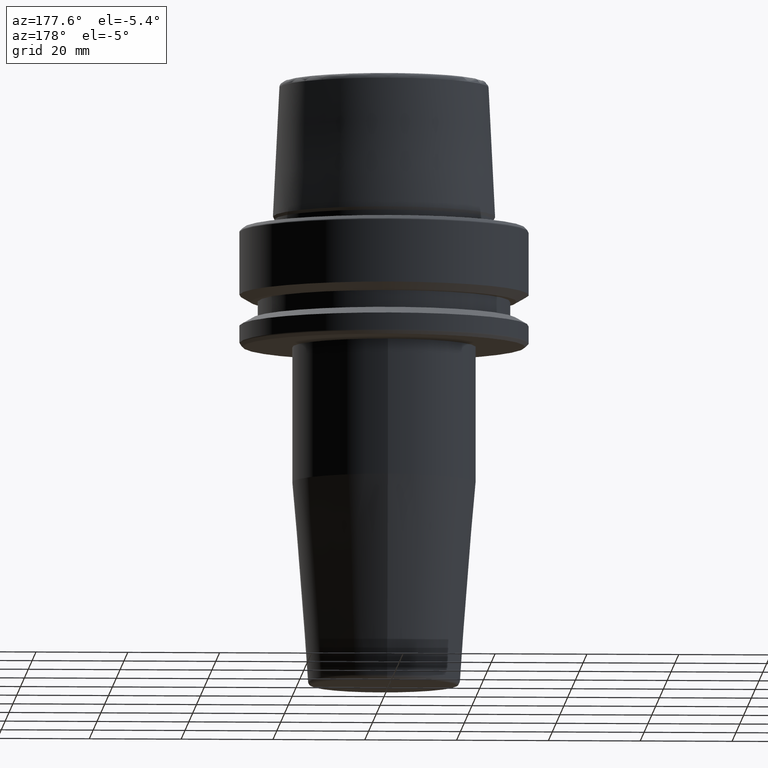
[diagram: clean part render]
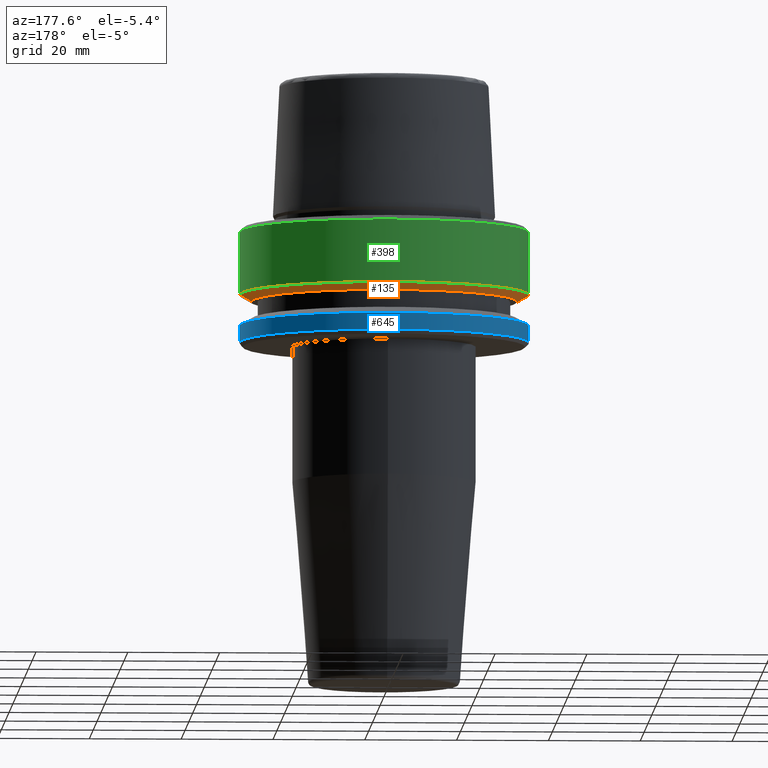
[diagram: same view with three faces highlighted in distinct colors, each labeled with its STEP entity id]
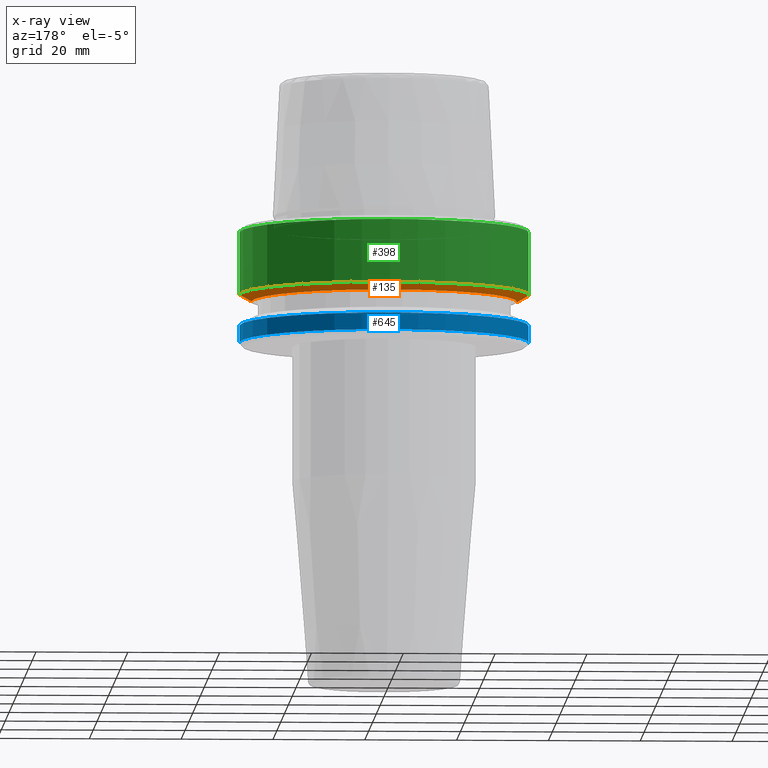
[diagram: x-ray of the same camera — body ghosted, the three highlighted faces saturated]
A machine part, auxiliary view with three faces highlighted in distinct colors.
The next image is the same camera in x-ray (body ghosted, the three faces saturated) — at least one of them is partly hidden behind the body in this view.
Their STEP definitions:

[orange] entity #135 — the highlighted conical surface has half-angle 60 deg.
#11 = CARTESIAN_POINT ( 'NONE',  ( 28.94089653438085100, 0.0000000000000000000, -16.10000000000001600 ) ) ;
#34 = EDGE_LOOP ( 'NONE', ( #689, #196, #109, #1229 ) ) ;
#43 = CARTESIAN_POINT ( 'NONE',  ( 28.94089653438085100, 0.0000000000000000000, -16.10000000000001600 ) ) ;
#109 = ORIENTED_EDGE ( 'NONE', *, *, #465, .F. ) ;
#135 = ADVANCED_FACE ( 'NONE', ( #1219 ), #867, .T. ) ;
#147 = CARTESIAN_POINT ( 'NONE',  ( -28.94089653438085100, 3.544237630528423800E-015, -16.10000000000001600 ) ) ;
#196 = ORIENTED_EDGE ( 'NONE', *, *, #1183, .T. ) ;
#218 = CIRCLE ( 'NONE', #932, 31.50000000000000000 ) ;
#225 = EDGE_CURVE ( 'NONE', #891, #380, #796, .T. ) ;
#286 = CARTESIAN_POINT ( 'NONE',  ( 0.0000000000000000000, 0.0000000000000000000, -16.10000000000001600 ) ) ;
#305 = LINE ( 'NONE', #147, #841 ) ;
#324 = CARTESIAN_POINT ( 'NONE',  ( 0.0000000000000000000, 0.0000000000000000000, -16.10000000000001600 ) ) ;
#380 = VERTEX_POINT ( 'NONE', #603 ) ;
#389 = DIRECTION ( 'NONE',  ( 1.000000000000000000, 0.0000000000000000000, 0.0000000000000000000 ) ) ;
#455 = CARTESIAN_POINT ( 'NONE',  ( 0.0000000000000000000, 0.0000000000000000000, -14.62250092524070100 ) ) ;
#465 = EDGE_CURVE ( 'NONE', #380, #585, #218, .T. ) ;
#525 = DIRECTION ( 'NONE',  ( -0.0000000000000000000, -0.0000000000000000000, 1.000000000000000000 ) ) ;
#561 = DIRECTION ( 'NONE',  ( 1.000000000000000000, 0.0000000000000000000, 0.0000000000000000000 ) ) ;
#585 = VERTEX_POINT ( 'NONE', #1071 ) ;
#603 = CARTESIAN_POINT ( 'NONE',  ( 31.50000000000000000, 0.0000000000000000000, -14.62250092524070100 ) ) ;
#632 = VECTOR ( 'NONE', #709, 1000.000000000000000 ) ;
#689 = ORIENTED_EDGE ( 'NONE', *, *, #912, .T. ) ;
#709 = DIRECTION ( 'NONE',  ( 0.8660254037844389300, 0.0000000000000000000, 0.4999999999999995000 ) ) ;
#796 = LINE ( 'NONE', #43, #632 ) ;
#823 = CARTESIAN_POINT ( 'NONE',  ( -28.94089653438085100, 3.700937523921292900E-015, -16.10000000000001600 ) ) ;
#837 = DIRECTION ( 'NONE',  ( -0.8660254037844389300, 1.060575238724907300E-016, 0.4999999999999995000 ) ) ;
#841 = VECTOR ( 'NONE', #837, 1000.000000000000000 ) ;
#867 = CONICAL_SURFACE ( 'NONE', #1030, 28.94089653438085100, 1.047197551196598300 ) ;
#891 = VERTEX_POINT ( 'NONE', #11 ) ;
#912 = EDGE_CURVE ( 'NONE', #891, #1087, #1016, .T. ) ;
#932 = AXIS2_PLACEMENT_3D ( 'NONE', #455, #1152, #561 ) ;
#982 = DIRECTION ( 'NONE',  ( -0.0000000000000000000, -0.0000000000000000000, 1.000000000000000000 ) ) ;
#1016 = CIRCLE ( 'NONE', #1226, 28.94089653438085100 ) ;
#1030 = AXIS2_PLACEMENT_3D ( 'NONE', #324, #525, #1216 ) ;
#1071 = CARTESIAN_POINT ( 'NONE',  ( -31.50000000000000000, 3.857637417314162700E-015, -14.62250092524070100 ) ) ;
#1087 = VERTEX_POINT ( 'NONE', #823 ) ;
#1152 = DIRECTION ( 'NONE',  ( -0.0000000000000000000, -0.0000000000000000000, 1.000000000000000000 ) ) ;
#1183 = EDGE_CURVE ( 'NONE', #1087, #585, #305, .T. ) ;
#1216 = DIRECTION ( 'NONE',  ( 1.000000000000000000, 0.0000000000000000000, 0.0000000000000000000 ) ) ;
#1219 = FACE_OUTER_BOUND ( 'NONE', #34, .T. ) ;
#1226 = AXIS2_PLACEMENT_3D ( 'NONE', #286, #982, #389 ) ;
#1229 = ORIENTED_EDGE ( 'NONE', *, *, #225, .F. ) ;

[blue] entity #645 — the highlighted cylindrical surface (partial cylindrical patch) has radius 31.5 mm, axis along (-0, -0, 1).
#6 = EDGE_CURVE ( 'NONE', #396, #102, #1021, .T. ) ;
#10 = CYLINDRICAL_SURFACE ( 'NONE', #688, 31.50000000000000000 ) ;
#29 = CARTESIAN_POINT ( 'NONE',  ( -31.50000000000000000, 3.857637417314162700E-015, 78.96908074195309300 ) ) ;
#46 = CARTESIAN_POINT ( 'NONE',  ( 31.50000000000000000, 0.0000000000000000000, -25.03431457505077200 ) ) ;
#77 = CARTESIAN_POINT ( 'NONE',  ( -31.50000000000000000, 3.857637417314162700E-015, -21.37749907475931700 ) ) ;
#102 = VERTEX_POINT ( 'NONE', #77 ) ;
#211 = CARTESIAN_POINT ( 'NONE',  ( 0.0000000000000000000, 0.0000000000000000000, -25.03431457505077200 ) ) ;
#217 = EDGE_LOOP ( 'NONE', ( #1007, #440, #435, #882 ) ) ;
#228 = CARTESIAN_POINT ( 'NONE',  ( 31.50000000000000000, 0.0000000000000000000, 78.96908074195309300 ) ) ;
#289 = AXIS2_PLACEMENT_3D ( 'NONE', #853, #751, #654 ) ;
#318 = DIRECTION ( 'NONE',  ( 1.000000000000000000, 0.0000000000000000000, 0.0000000000000000000 ) ) ;
#345 = DIRECTION ( 'NONE',  ( 1.000000000000000000, 0.0000000000000000000, 0.0000000000000000000 ) ) ;
#367 = LINE ( 'NONE', #29, #1128 ) ;
#369 = VECTOR ( 'NONE', #1018, 1000.000000000000000 ) ;
#396 = VERTEX_POINT ( 'NONE', #904 ) ;
#397 = EDGE_CURVE ( 'NONE', #1046, #922, #776, .T. ) ;
#435 = ORIENTED_EDGE ( 'NONE', *, *, #6, .F. ) ;
#440 = ORIENTED_EDGE ( 'NONE', *, *, #794, .T. ) ;
#537 = AXIS2_PLACEMENT_3D ( 'NONE', #211, #909, #318 ) ;
#541 = CARTESIAN_POINT ( 'NONE',  ( 0.0000000000000000000, 0.0000000000000000000, 78.96908074195309300 ) ) ;
#645 = ADVANCED_FACE ( 'NONE', ( #1061 ), #10, .T. ) ;
#654 = DIRECTION ( 'NONE',  ( 1.000000000000000000, 0.0000000000000000000, 0.0000000000000000000 ) ) ;
#688 = AXIS2_PLACEMENT_3D ( 'NONE', #541, #936, #345 ) ;
#751 = DIRECTION ( 'NONE',  ( -0.0000000000000000000, -0.0000000000000000000, 1.000000000000000000 ) ) ;
#776 = CIRCLE ( 'NONE', #537, 31.50000000000000000 ) ;
#790 = CARTESIAN_POINT ( 'NONE',  ( -31.50000000000000000, 3.857637417314161900E-015, -25.03431457505077200 ) ) ;
#794 = EDGE_CURVE ( 'NONE', #922, #102, #367, .T. ) ;
#853 = CARTESIAN_POINT ( 'NONE',  ( 0.0000000000000000000, 0.0000000000000000000, -21.37749907475931700 ) ) ;
#882 = ORIENTED_EDGE ( 'NONE', *, *, #1073, .F. ) ;
#904 = CARTESIAN_POINT ( 'NONE',  ( 31.50000000000000000, 0.0000000000000000000, -21.37749907475931700 ) ) ;
#909 = DIRECTION ( 'NONE',  ( -0.0000000000000000000, -0.0000000000000000000, 1.000000000000000000 ) ) ;
#922 = VERTEX_POINT ( 'NONE', #790 ) ;
#936 = DIRECTION ( 'NONE',  ( -0.0000000000000000000, -0.0000000000000000000, 1.000000000000000000 ) ) ;
#1007 = ORIENTED_EDGE ( 'NONE', *, *, #397, .T. ) ;
#1018 = DIRECTION ( 'NONE',  ( -0.0000000000000000000, -0.0000000000000000000, 1.000000000000000000 ) ) ;
#1021 = CIRCLE ( 'NONE', #289, 31.50000000000000000 ) ;
#1046 = VERTEX_POINT ( 'NONE', #46 ) ;
#1061 = FACE_OUTER_BOUND ( 'NONE', #217, .T. ) ;
#1073 = EDGE_CURVE ( 'NONE', #1046, #396, #1131, .T. ) ;
#1098 = DIRECTION ( 'NONE',  ( -0.0000000000000000000, -0.0000000000000000000, 1.000000000000000000 ) ) ;
#1128 = VECTOR ( 'NONE', #1098, 1000.000000000000000 ) ;
#1131 = LINE ( 'NONE', #228, #369 ) ;

[green] entity #398 — the highlighted cylindrical surface (partial cylindrical patch) has radius 31.5 mm, axis along (-0, -0, 1).
#15 = VERTEX_POINT ( 'NONE', #458 ) ;
#55 = AXIS2_PLACEMENT_3D ( 'NONE', #1029, #432, #1129 ) ;
#60 = LINE ( 'NONE', #151, #267 ) ;
#74 = ORIENTED_EDGE ( 'NONE', *, *, #729, .T. ) ;
#151 = CARTESIAN_POINT ( 'NONE',  ( 31.50000000000000000, 0.0000000000000000000, 78.96908074195309300 ) ) ;
#155 = VERTEX_POINT ( 'NONE', #189 ) ;
#170 = VECTOR ( 'NONE', #973, 1000.000000000000000 ) ;
#189 = CARTESIAN_POINT ( 'NONE',  ( -31.50000000000000000, 3.857637417314162700E-015, -0.9656854249492363700 ) ) ;
#218 = CIRCLE ( 'NONE', #932, 31.50000000000000000 ) ;
#267 = VECTOR ( 'NONE', #635, 1000.000000000000000 ) ;
#282 = FACE_OUTER_BOUND ( 'NONE', #781, .T. ) ;
#380 = VERTEX_POINT ( 'NONE', #603 ) ;
#387 = ORIENTED_EDGE ( 'NONE', *, *, #644, .F. ) ;
#398 = ADVANCED_FACE ( 'NONE', ( #282 ), #1011, .T. ) ;
#432 = DIRECTION ( 'NONE',  ( -0.0000000000000000000, -0.0000000000000000000, 1.000000000000000000 ) ) ;
#455 = CARTESIAN_POINT ( 'NONE',  ( 0.0000000000000000000, 0.0000000000000000000, -14.62250092524070100 ) ) ;
#458 = CARTESIAN_POINT ( 'NONE',  ( 31.50000000000000000, 0.0000000000000000000, -0.9656854249492363700 ) ) ;
#465 = EDGE_CURVE ( 'NONE', #380, #585, #218, .T. ) ;
#511 = DIRECTION ( 'NONE',  ( -0.0000000000000000000, -0.0000000000000000000, 1.000000000000000000 ) ) ;
#561 = DIRECTION ( 'NONE',  ( 1.000000000000000000, 0.0000000000000000000, 0.0000000000000000000 ) ) ;
#585 = VERTEX_POINT ( 'NONE', #1071 ) ;
#601 = EDGE_CURVE ( 'NONE', #15, #155, #858, .T. ) ;
#603 = CARTESIAN_POINT ( 'NONE',  ( 31.50000000000000000, 0.0000000000000000000, -14.62250092524070100 ) ) ;
#635 = DIRECTION ( 'NONE',  ( -0.0000000000000000000, -0.0000000000000000000, 1.000000000000000000 ) ) ;
#644 = EDGE_CURVE ( 'NONE', #380, #15, #60, .T. ) ;
#672 = CARTESIAN_POINT ( 'NONE',  ( -31.50000000000000000, 3.857637417314162700E-015, 78.96908074195309300 ) ) ;
#682 = LINE ( 'NONE', #672, #170 ) ;
#706 = DIRECTION ( 'NONE',  ( 1.000000000000000000, 0.0000000000000000000, 0.0000000000000000000 ) ) ;
#729 = EDGE_CURVE ( 'NONE', #585, #155, #682, .T. ) ;
#732 = ORIENTED_EDGE ( 'NONE', *, *, #601, .F. ) ;
#733 = AXIS2_PLACEMENT_3D ( 'NONE', #809, #511, #706 ) ;
#781 = EDGE_LOOP ( 'NONE', ( #1089, #74, #732, #387 ) ) ;
#809 = CARTESIAN_POINT ( 'NONE',  ( 0.0000000000000000000, 0.0000000000000000000, 78.96908074195309300 ) ) ;
#858 = CIRCLE ( 'NONE', #55, 31.50000000000000000 ) ;
#932 = AXIS2_PLACEMENT_3D ( 'NONE', #455, #1152, #561 ) ;
#973 = DIRECTION ( 'NONE',  ( -0.0000000000000000000, -0.0000000000000000000, 1.000000000000000000 ) ) ;
#1011 = CYLINDRICAL_SURFACE ( 'NONE', #733, 31.50000000000000000 ) ;
#1029 = CARTESIAN_POINT ( 'NONE',  ( 0.0000000000000000000, 0.0000000000000000000, -0.9656854249492363700 ) ) ;
#1071 = CARTESIAN_POINT ( 'NONE',  ( -31.50000000000000000, 3.857637417314162700E-015, -14.62250092524070100 ) ) ;
#1089 = ORIENTED_EDGE ( 'NONE', *, *, #465, .T. ) ;
#1129 = DIRECTION ( 'NONE',  ( 1.000000000000000000, 0.0000000000000000000, 0.0000000000000000000 ) ) ;
#1152 = DIRECTION ( 'NONE',  ( -0.0000000000000000000, -0.0000000000000000000, 1.000000000000000000 ) ) ;